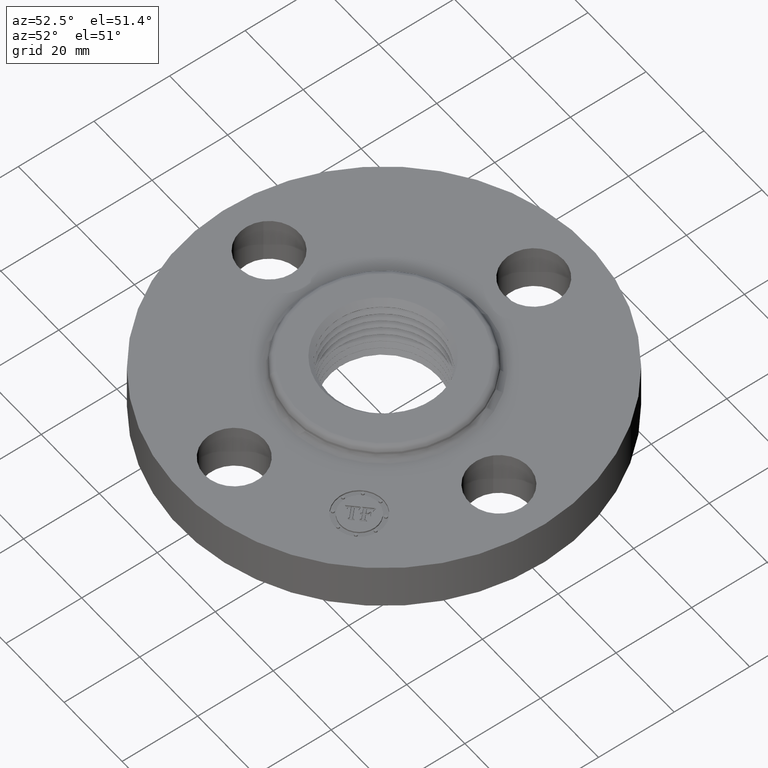
[diagram: clean part render]
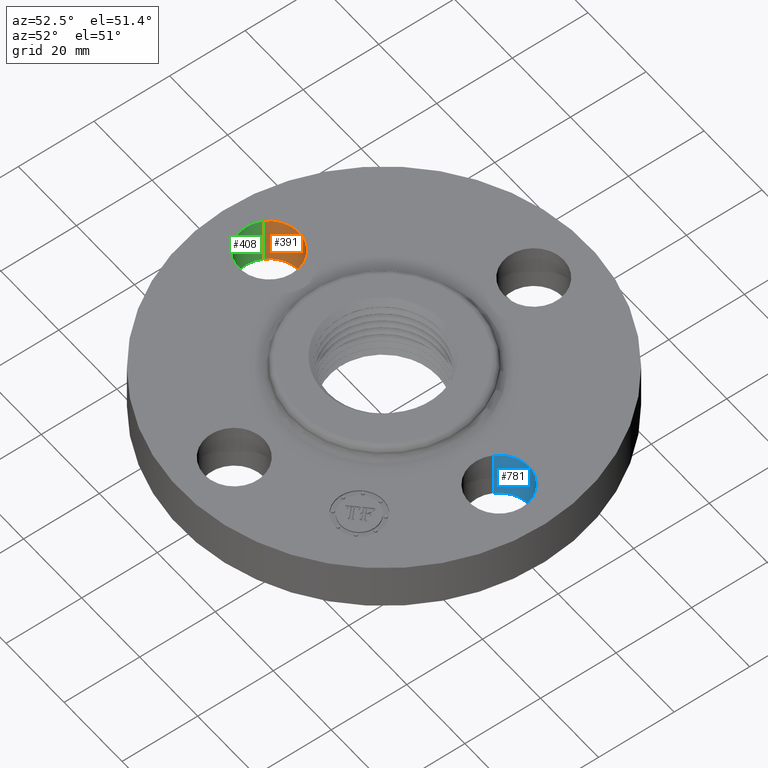
[diagram: same view with three faces highlighted in distinct colors, each labeled with its STEP entity id]
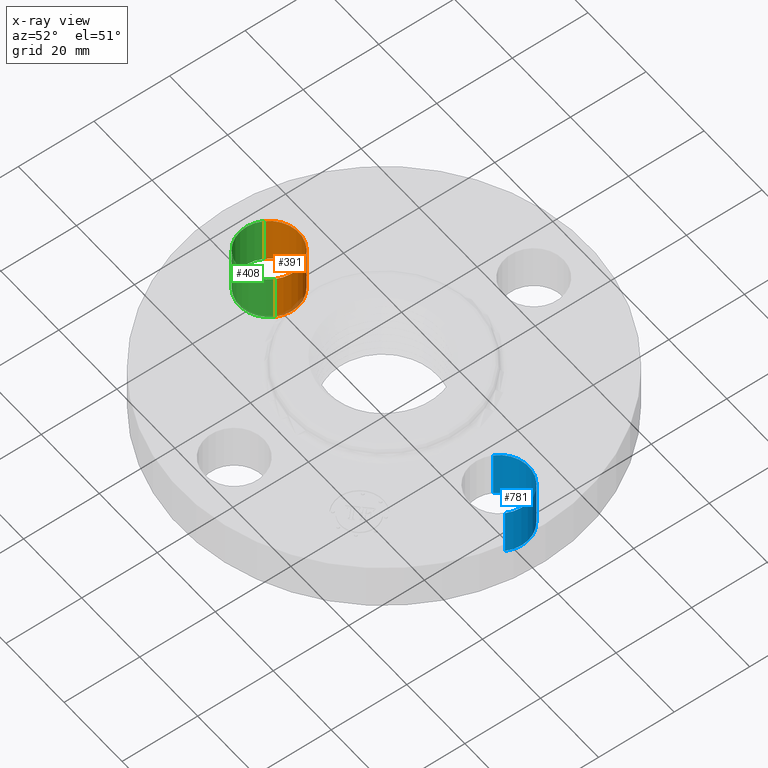
[diagram: x-ray of the same camera — body ghosted, the three highlighted faces saturated]
A machine part, auxiliary view with three faces highlighted in distinct colors.
The next image is the same camera in x-ray (body ghosted, the three faces saturated) — at least one of them is partly hidden behind the body in this view.
Their STEP definitions:

[orange] entity #391 — the highlighted cylindrical surface (partial cylindrical patch) has radius 7.874 mm, axis along (-0, 0, -1).
#355=AXIS2_PLACEMENT_3D('Cylinder Axis2P3D',#352,#353,#354) ;
#368=AXIS2_PLACEMENT_3D('Circle Axis2P3D',#366,#367,$) ;
#382=AXIS2_PLACEMENT_3D('Circle Axis2P3D',#380,#381,$) ;
#352=CARTESIAN_POINT('Axis2P3D Location',(-1.56000000001,-1.91044900668E-016,0.496062992128)) ;
#357=CARTESIAN_POINT('Line Origine',(-1.83205059419,0.148621916968,0.250000000001)) ;
#361=CARTESIAN_POINT('Vertex',(-1.83205059419,0.148621916968,0.)) ;
#363=CARTESIAN_POINT('Vertex',(-1.83205059419,0.148621916968,0.500000000002)) ;
#366=CARTESIAN_POINT('Axis2P3D Location',(-1.56000000001,-1.91044900668E-016,0.)) ;
#370=CARTESIAN_POINT('Vertex',(-1.28794940582,-0.148621916968,0.)) ;
#373=CARTESIAN_POINT('Line Origine',(-1.28794940582,-0.148621916968,0.250000000001)) ;
#377=CARTESIAN_POINT('Vertex',(-1.28794940582,-0.148621916968,0.500000000002)) ;
#380=CARTESIAN_POINT('Axis2P3D Location',(-1.56000000001,-1.91044900668E-016,0.500000000002)) ;
#353=DIRECTION('Axis2P3D Direction',(-0.,0.,-0.0393700787402)) ;
#354=DIRECTION('Axis2P3D XDirection',(0.0345504945626,-0.0188750212049,-0.)) ;
#358=DIRECTION('Vector Direction',(0.,0.,-0.0393700787402)) ;
#367=DIRECTION('Axis2P3D Direction',(-0.,0.,-0.0393700787402)) ;
#374=DIRECTION('Vector Direction',(0.,0.,-0.0393700787402)) ;
#381=DIRECTION('Axis2P3D Direction',(-0.,0.,-0.0393700787402)) ;
#359=VECTOR('Line Direction',#358,0.0393700787402) ;
#375=VECTOR('Line Direction',#374,0.0393700787402) ;
#386=ORIENTED_EDGE('',*,*,#365,.F.) ;
#387=ORIENTED_EDGE('',*,*,#372,.T.) ;
#388=ORIENTED_EDGE('',*,*,#379,.T.) ;
#389=ORIENTED_EDGE('',*,*,#384,.F.) ;
#391=ADVANCED_FACE('PartBody',(#390),#356,.F.) ;
#369=CIRCLE('generated circle',#368,0.310000000001) ;
#383=CIRCLE('generated circle',#382,0.310000000001) ;
#356=CYLINDRICAL_SURFACE('generated cylinder',#355,0.310000000001) ;
#365=EDGE_CURVE('',#362,#364,#360,.F.) ;
#372=EDGE_CURVE('',#362,#371,#369,.T.) ;
#379=EDGE_CURVE('',#371,#378,#376,.F.) ;
#384=EDGE_CURVE('',#364,#378,#383,.T.) ;
#385=EDGE_LOOP('',(#386,#387,#388,#389)) ;
#390=FACE_OUTER_BOUND('',#385,.T.) ;
#360=LINE('Line',#357,#359) ;
#376=LINE('Line',#373,#375) ;
#362=VERTEX_POINT('',#361) ;
#364=VERTEX_POINT('',#363) ;
#371=VERTEX_POINT('',#370) ;
#378=VERTEX_POINT('',#377) ;

[blue] entity #781 — the highlighted cylindrical surface (partial cylindrical patch) has radius 7.874 mm, axis along (0, -0, -1).
#500=AXIS2_PLACEMENT_3D('Circle Axis2P3D',#498,#499,$) ;
#742=AXIS2_PLACEMENT_3D('Cylinder Axis2P3D',#739,#740,#741) ;
#772=AXIS2_PLACEMENT_3D('Circle Axis2P3D',#770,#771,$) ;
#493=CARTESIAN_POINT('Vertex',(1.83205059419,-0.148621916968,0.)) ;
#495=CARTESIAN_POINT('Vertex',(1.28794940582,0.148621916968,0.)) ;
#498=CARTESIAN_POINT('Axis2P3D Location',(1.56000000001,0.,0.)) ;
#739=CARTESIAN_POINT('Axis2P3D Location',(1.56000000001,0.,0.496062992128)) ;
#744=CARTESIAN_POINT('Line Origine',(1.83205059419,-0.148621916968,0.250000000001)) ;
#748=CARTESIAN_POINT('Vertex',(1.83205059419,-0.148621916968,0.500000000002)) ;
#751=CARTESIAN_POINT('Line Origine',(1.28794940582,0.148621916968,0.250000000001)) ;
#755=CARTESIAN_POINT('Vertex',(1.28794940582,0.148621916968,0.500000000002)) ;
#770=CARTESIAN_POINT('Axis2P3D Location',(1.56000000001,0.,0.500000000002)) ;
#499=DIRECTION('Axis2P3D Direction',(0.,0.,-0.0393700787402)) ;
#740=DIRECTION('Axis2P3D Direction',(0.,-0.,-0.0393700787402)) ;
#741=DIRECTION('Axis2P3D XDirection',(-0.0345504945626,0.0188750212049,0.)) ;
#745=DIRECTION('Vector Direction',(0.,0.,-0.0393700787402)) ;
#752=DIRECTION('Vector Direction',(0.,0.,-0.0393700787402)) ;
#771=DIRECTION('Axis2P3D Direction',(0.,-0.,-0.0393700787402)) ;
#746=VECTOR('Line Direction',#745,0.0393700787402) ;
#753=VECTOR('Line Direction',#752,0.0393700787402) ;
#776=ORIENTED_EDGE('',*,*,#757,.F.) ;
#777=ORIENTED_EDGE('',*,*,#502,.T.) ;
#778=ORIENTED_EDGE('',*,*,#750,.T.) ;
#779=ORIENTED_EDGE('',*,*,#774,.F.) ;
#781=ADVANCED_FACE('PartBody',(#780),#743,.F.) ;
#501=CIRCLE('generated circle',#500,0.310000000001) ;
#773=CIRCLE('generated circle',#772,0.310000000001) ;
#743=CYLINDRICAL_SURFACE('generated cylinder',#742,0.310000000001) ;
#502=EDGE_CURVE('',#496,#494,#501,.T.) ;
#750=EDGE_CURVE('',#494,#749,#747,.F.) ;
#757=EDGE_CURVE('',#496,#756,#754,.F.) ;
#774=EDGE_CURVE('',#756,#749,#773,.T.) ;
#775=EDGE_LOOP('',(#776,#777,#778,#779)) ;
#780=FACE_OUTER_BOUND('',#775,.T.) ;
#747=LINE('Line',#744,#746) ;
#754=LINE('Line',#751,#753) ;
#494=VERTEX_POINT('',#493) ;
#496=VERTEX_POINT('',#495) ;
#749=VERTEX_POINT('',#748) ;
#756=VERTEX_POINT('',#755) ;

[green] entity #408 — the highlighted cylindrical surface (partial cylindrical patch) has radius 7.874 mm, axis along (-0, 0, -1).
#355=AXIS2_PLACEMENT_3D('Cylinder Axis2P3D',#352,#353,#354) ;
#394=AXIS2_PLACEMENT_3D('Circle Axis2P3D',#392,#393,$) ;
#399=AXIS2_PLACEMENT_3D('Circle Axis2P3D',#397,#398,$) ;
#352=CARTESIAN_POINT('Axis2P3D Location',(-1.56000000001,-1.91044900668E-016,0.496062992128)) ;
#357=CARTESIAN_POINT('Line Origine',(-1.83205059419,0.148621916968,0.250000000001)) ;
#361=CARTESIAN_POINT('Vertex',(-1.83205059419,0.148621916968,0.)) ;
#363=CARTESIAN_POINT('Vertex',(-1.83205059419,0.148621916968,0.500000000002)) ;
#370=CARTESIAN_POINT('Vertex',(-1.28794940582,-0.148621916968,0.)) ;
#373=CARTESIAN_POINT('Line Origine',(-1.28794940582,-0.148621916968,0.250000000001)) ;
#377=CARTESIAN_POINT('Vertex',(-1.28794940582,-0.148621916968,0.500000000002)) ;
#392=CARTESIAN_POINT('Axis2P3D Location',(-1.56000000001,-1.91044900668E-016,0.)) ;
#397=CARTESIAN_POINT('Axis2P3D Location',(-1.56000000001,-1.91044900668E-016,0.500000000002)) ;
#353=DIRECTION('Axis2P3D Direction',(-0.,0.,-0.0393700787402)) ;
#354=DIRECTION('Axis2P3D XDirection',(0.0345504945626,-0.0188750212049,-0.)) ;
#358=DIRECTION('Vector Direction',(0.,0.,-0.0393700787402)) ;
#374=DIRECTION('Vector Direction',(0.,0.,-0.0393700787402)) ;
#393=DIRECTION('Axis2P3D Direction',(-0.,0.,-0.0393700787402)) ;
#398=DIRECTION('Axis2P3D Direction',(-0.,0.,-0.0393700787402)) ;
#359=VECTOR('Line Direction',#358,0.0393700787402) ;
#375=VECTOR('Line Direction',#374,0.0393700787402) ;
#403=ORIENTED_EDGE('',*,*,#379,.F.) ;
#404=ORIENTED_EDGE('',*,*,#396,.T.) ;
#405=ORIENTED_EDGE('',*,*,#365,.T.) ;
#406=ORIENTED_EDGE('',*,*,#401,.F.) ;
#408=ADVANCED_FACE('PartBody',(#407),#356,.F.) ;
#395=CIRCLE('generated circle',#394,0.310000000001) ;
#400=CIRCLE('generated circle',#399,0.310000000001) ;
#356=CYLINDRICAL_SURFACE('generated cylinder',#355,0.310000000001) ;
#365=EDGE_CURVE('',#362,#364,#360,.F.) ;
#379=EDGE_CURVE('',#371,#378,#376,.F.) ;
#396=EDGE_CURVE('',#371,#362,#395,.T.) ;
#401=EDGE_CURVE('',#378,#364,#400,.T.) ;
#402=EDGE_LOOP('',(#403,#404,#405,#406)) ;
#407=FACE_OUTER_BOUND('',#402,.T.) ;
#360=LINE('Line',#357,#359) ;
#376=LINE('Line',#373,#375) ;
#362=VERTEX_POINT('',#361) ;
#364=VERTEX_POINT('',#363) ;
#371=VERTEX_POINT('',#370) ;
#378=VERTEX_POINT('',#377) ;